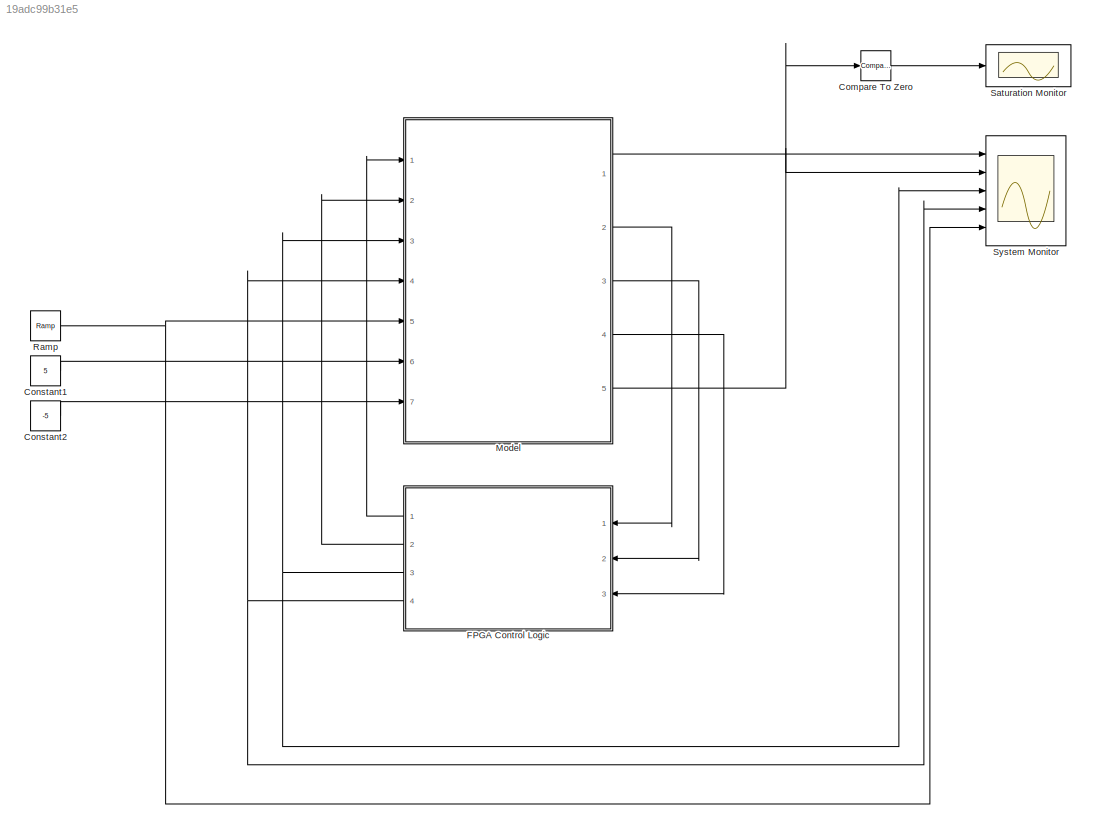
MODEL slx_19adc99b31e5
KIND model
BLOCK [Reference] Compare To Zero  REF=simulink/Logic and Bit
Operations/Compare
To Zero
  OutDataTypeStr = boolean
  Ports = [1, 1]
  SourceBlock = simulink/Logic and Bit\nOperations/Compare\nTo Zero
  SourceType = Compare To Zero
  ZeroCross = on
  relop = ==
BLOCK [Constant] Constant1
  Value = 5
BLOCK [Constant] Constant2
  Value = -5
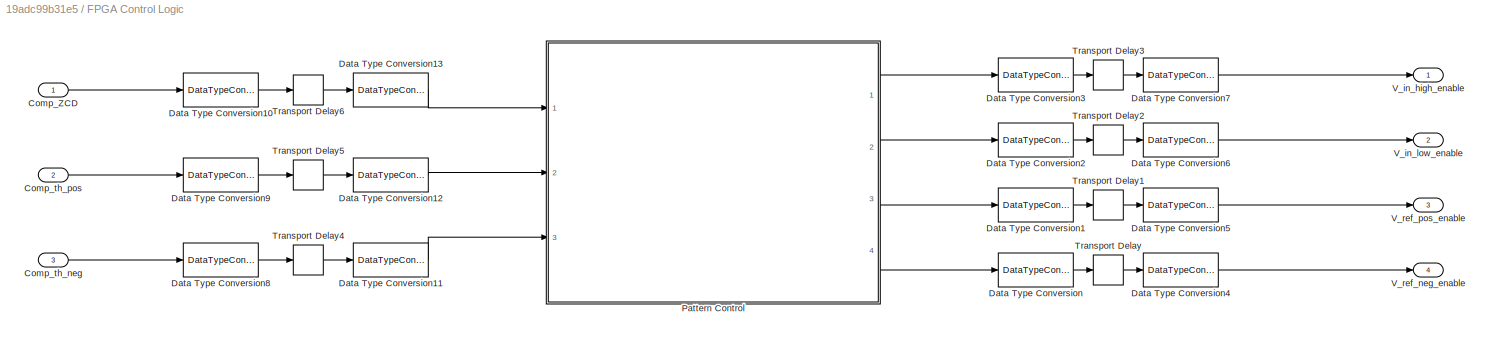
BLOCK [SubSystem] FPGA Control Logic
  FunctionWithSeparateData = off
  MaskHideContents = off
  MinAlgLoopOccurrences = off
  Opaque = off
  Ports = [3, 4]
  PropExecContextOutsideSubsystem = off
  RTWSystemCode = Auto
  RequestExecContextInheritance = off
BLOCK [Inport] FPGA Control Logic/Comp_ZCD
  IconDisplay = Port number
BLOCK [Inport] FPGA Control Logic/Comp_th_neg
  IconDisplay = Port number
  Port = 3
BLOCK [Inport] FPGA Control Logic/Comp_th_pos
  IconDisplay = Port number
  Port = 2
BLOCK [DataTypeConversion] FPGA Control Logic/Data Type Conversion
  OutDataTypeStr = double
  RndMeth = Floor
  SaturateOnIntegerOverflow = off
BLOCK [DataTypeConversion] FPGA Control Logic/Data Type Conversion1
  OutDataTypeStr = double
  RndMeth = Floor
  SaturateOnIntegerOverflow = off
BLOCK [DataTypeConversion] FPGA Control Logic/Data Type Conversion10
  OutDataTypeStr = double
  RndMeth = Floor
  SaturateOnIntegerOverflow = off
BLOCK [DataTypeConversion] FPGA Control Logic/Data Type Conversion11
  OutDataTypeStr = boolean
  RndMeth = Floor
  SaturateOnIntegerOverflow = off
BLOCK [DataTypeConversion] FPGA Control Logic/Data Type Conversion12
  OutDataTypeStr = boolean
  RndMeth = Floor
  SaturateOnIntegerOverflow = off
BLOCK [DataTypeConversion] FPGA Control Logic/Data Type Conversion13
  OutDataTypeStr = boolean
  RndMeth = Floor
  SaturateOnIntegerOverflow = off
BLOCK [DataTypeConversion] FPGA Control Logic/Data Type Conversion2
  OutDataTypeStr = double
  RndMeth = Floor
  SaturateOnIntegerOverflow = off
BLOCK [DataTypeConversion] FPGA Control Logic/Data Type Conversion3
  OutDataTypeStr = double
  RndMeth = Floor
  SaturateOnIntegerOverflow = off
BLOCK [DataTypeConversion] FPGA Control Logic/Data Type Conversion4
  OutDataTypeStr = boolean
  RndMeth = Floor
  SaturateOnIntegerOverflow = off
BLOCK [DataTypeConversion] FPGA Control Logic/Data Type Conversion5
  OutDataTypeStr = boolean
  RndMeth = Floor
  SaturateOnIntegerOverflow = off
BLOCK [DataTypeConversion] FPGA Control Logic/Data Type Conversion6
  OutDataTypeStr = boolean
  RndMeth = Floor
  SaturateOnIntegerOverflow = off
BLOCK [DataTypeConversion] FPGA Control Logic/Data Type Conversion7
  OutDataTypeStr = boolean
  RndMeth = Floor
  SaturateOnIntegerOverflow = off
BLOCK [DataTypeConversion] FPGA Control Logic/Data Type Conversion8
  OutDataTypeStr = double
  RndMeth = Floor
  SaturateOnIntegerOverflow = off
BLOCK [DataTypeConversion] FPGA Control Logic/Data Type Conversion9
  OutDataTypeStr = double
  RndMeth = Floor
  SaturateOnIntegerOverflow = off
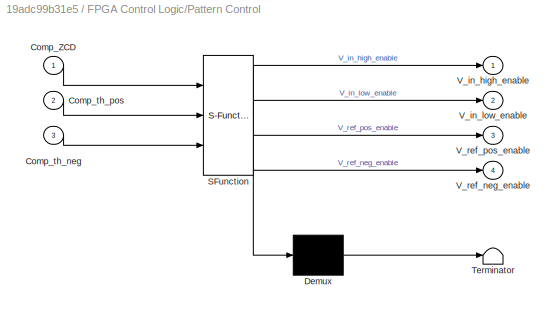
BLOCK [SubSystem] FPGA Control Logic/Pattern Control
  ErrorFcn = Stateflow.Translate.translate
  FunctionWithSeparateData = off
  MaskHideContents = off
  MinAlgLoopOccurrences = off
  Opaque = off
  PermitHierarchicalResolution = ExplicitOnly
  Ports = [3, 4]
  PropExecContextOutsideSubsystem = off
  RTWSystemCode = Auto
  RequestExecContextInheritance = off
  SFBlockType = Chart
  TreatAsAtomicUnit = on
BLOCK [Demux] FPGA Control Logic/Pattern Control/ Demux 
  Outputs = 1
  Ports = [1, 1]
BLOCK [S-Function] FPGA Control Logic/Pattern Control/ SFunction 
  EnableBusSupport = on
  FunctionName = sf_sfun
  Parameters = t_pattern
  PortCounts = [3 5]
  Ports = [3, 5]
  Tag = Stateflow S-Function OSHW_Multimeter_System 1
BLOCK [Terminator] FPGA Control Logic/Pattern Control/ Terminator 
BLOCK [Inport] FPGA Control Logic/Pattern Control/Comp_ZCD
  IconDisplay = Port number
BLOCK [Inport] FPGA Control Logic/Pattern Control/Comp_th_neg
  IconDisplay = Port number
  Port = 3
BLOCK [Inport] FPGA Control Logic/Pattern Control/Comp_th_pos
  IconDisplay = Port number
  Port = 2
BLOCK [Outport] FPGA Control Logic/Pattern Control/V_in_high_enable
  IconDisplay = Port number
BLOCK [Outport] FPGA Control Logic/Pattern Control/V_in_low_enable
  IconDisplay = Port number
  Port = 2
BLOCK [Outport] FPGA Control Logic/Pattern Control/V_ref_neg_enable
  IconDisplay = Port number
  Port = 4
BLOCK [Outport] FPGA Control Logic/Pattern Control/V_ref_pos_enable
  IconDisplay = Port number
  Port = 3
BLOCK [TransportDelay] FPGA Control Logic/Transport Delay
  DelayTime = 1/FPGA_Output_Freq
  Ports = [1, 1]
BLOCK [TransportDelay] FPGA Control Logic/Transport Delay1
  DelayTime = 1/FPGA_Output_Freq
  Ports = [1, 1]
BLOCK [TransportDelay] FPGA Control Logic/Transport Delay2
  DelayTime = 1/FPGA_Output_Freq
  Ports = [1, 1]
BLOCK [TransportDelay] FPGA Control Logic/Transport Delay3
  DelayTime = 1/FPGA_Output_Freq
  Ports = [1, 1]
BLOCK [TransportDelay] FPGA Control Logic/Transport Delay4
  DelayTime = 1/FPGA_Output_Freq
  Ports = [1, 1]
BLOCK [TransportDelay] FPGA Control Logic/Transport Delay5
  DelayTime = 1/FPGA_Output_Freq
  Ports = [1, 1]
BLOCK [TransportDelay] FPGA Control Logic/Transport Delay6
  DelayTime = 1/FPGA_Output_Freq
  Ports = [1, 1]
BLOCK [Outport] FPGA Control Logic/V_in_high_enable
  IconDisplay = Port number
BLOCK [Outport] FPGA Control Logic/V_in_low_enable
  IconDisplay = Port number
  Port = 2
BLOCK [Outport] FPGA Control Logic/V_ref_neg_enable
  IconDisplay = Port number
  Port = 4
BLOCK [Outport] FPGA Control Logic/V_ref_pos_enable
  IconDisplay = Port number
  Port = 3
BLOCK [ModelReference] Model
  CopyOfModelName = voltage_integrator
  DefaultDataLogging = on
  ModelNameDialog = voltage_integrator
  ModelReferenceVersion = 1.55
  Ports = [7, 5]
BLOCK [Reference] Ramp  REF=simulink/Sources/Ramp
  Ports = [0, 1]
  SourceBlock = simulink/Sources/Ramp
  SourceType = Ramp
  VectorParams1D = on
  X0 = 0
  slope = 2.5/(0.0025*30)
  start = 0
BLOCK [Scope] Saturation Monitor
  DataFormat = StructureWithTime
  Floating = off
  LimitDataPoints = off
  NumInputPorts = 1
  Ports = [1]
  SampleTime = 0
  SaveName = ScopeData1
  ShowLegends = off
  YMax = 1.5
  YMin = -0.5
BLOCK [Scope] System Monitor
  DataFormat = StructureWithTime
  Floating = off
  LimitDataPoints = off
  NumInputPorts = 5
  Ports = [5]
  SampleTime = 0
  ShowLegends = off
  YMax = 262144~3~1.5~1.5~3
  YMin = -262144~-3~-0.5~-0.5~-3
  ZoomMode = xonly
LINE Compare To Zero:1 -> Saturation Monitor:1
LINE Constant1:1 -> Model:6
LINE Constant2:1 -> Model:7
LINE FPGA Control Logic/Comp_ZCD:1 -> FPGA Control Logic/Data Type Conversion10:1
LINE FPGA Control Logic/Comp_th_neg:1 -> FPGA Control Logic/Data Type Conversion8:1
LINE FPGA Control Logic/Comp_th_pos:1 -> FPGA Control Logic/Data Type Conversion9:1
LINE FPGA Control Logic/Data Type Conversion10:1 -> FPGA Control Logic/Transport Delay6:1
LINE FPGA Control Logic/Data Type Conversion11:1 -> FPGA Control Logic/Pattern Control:3
LINE FPGA Control Logic/Data Type Conversion12:1 -> FPGA Control Logic/Pattern Control:2
LINE FPGA Control Logic/Data Type Conversion13:1 -> FPGA Control Logic/Pattern Control:1
LINE FPGA Control Logic/Data Type Conversion1:1 -> FPGA Control Logic/Transport Delay1:1
LINE FPGA Control Logic/Data Type Conversion2:1 -> FPGA Control Logic/Transport Delay2:1
LINE FPGA Control Logic/Data Type Conversion3:1 -> FPGA Control Logic/Transport Delay3:1
LINE FPGA Control Logic/Data Type Conversion4:1 -> FPGA Control Logic/V_ref_neg_enable:1
LINE FPGA Control Logic/Data Type Conversion5:1 -> FPGA Control Logic/V_ref_pos_enable:1
LINE FPGA Control Logic/Data Type Conversion6:1 -> FPGA Control Logic/V_in_low_enable:1
LINE FPGA Control Logic/Data Type Conversion7:1 -> FPGA Control Logic/V_in_high_enable:1
LINE FPGA Control Logic/Data Type Conversion8:1 -> FPGA Control Logic/Transport Delay4:1
LINE FPGA Control Logic/Data Type Conversion9:1 -> FPGA Control Logic/Transport Delay5:1
LINE FPGA Control Logic/Data Type Conversion:1 -> FPGA Control Logic/Transport Delay:1
LINE FPGA Control Logic/Pattern Control:1 -> FPGA Control Logic/Data Type Conversion3:1
LINE FPGA Control Logic/Pattern Control:2 -> FPGA Control Logic/Data Type Conversion2:1
LINE FPGA Control Logic/Pattern Control:3 -> FPGA Control Logic/Data Type Conversion1:1
LINE FPGA Control Logic/Pattern Control:4 -> FPGA Control Logic/Data Type Conversion:1
LINE FPGA Control Logic/Transport Delay1:1 -> FPGA Control Logic/Data Type Conversion5:1
LINE FPGA Control Logic/Transport Delay2:1 -> FPGA Control Logic/Data Type Conversion6:1
LINE FPGA Control Logic/Transport Delay3:1 -> FPGA Control Logic/Data Type Conversion7:1
LINE FPGA Control Logic/Transport Delay4:1 -> FPGA Control Logic/Data Type Conversion11:1
LINE FPGA Control Logic/Transport Delay5:1 -> FPGA Control Logic/Data Type Conversion12:1
LINE FPGA Control Logic/Transport Delay6:1 -> FPGA Control Logic/Data Type Conversion13:1
LINE FPGA Control Logic/Transport Delay:1 -> FPGA Control Logic/Data Type Conversion4:1
LINE FPGA Control Logic:1 -> Model:1
LINE FPGA Control Logic:2 -> Model:2
NET FPGA Control Logic:3 -> Model:3, System Monitor:3
NET FPGA Control Logic:4 -> Model:4, System Monitor:4
LINE Model:1 -> System Monitor:1
LINE Model:2 -> FPGA Control Logic:1
LINE Model:3 -> FPGA Control Logic:2
LINE Model:4 -> FPGA Control Logic:3
NET Model:5 -> Compare To Zero:1, System Monitor:2
NET Ramp:1 -> Model:5, System Monitor:5
note: NET lines group one-source signal fan-out (src -> all destinations, sorted); 1:1 wires keep LINE
